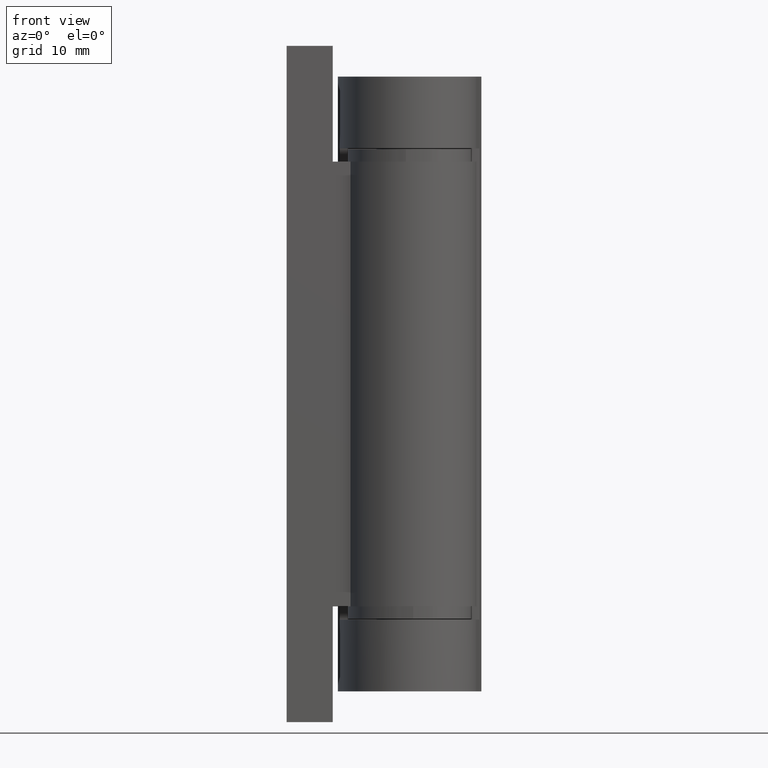
[diagram: clean part render]
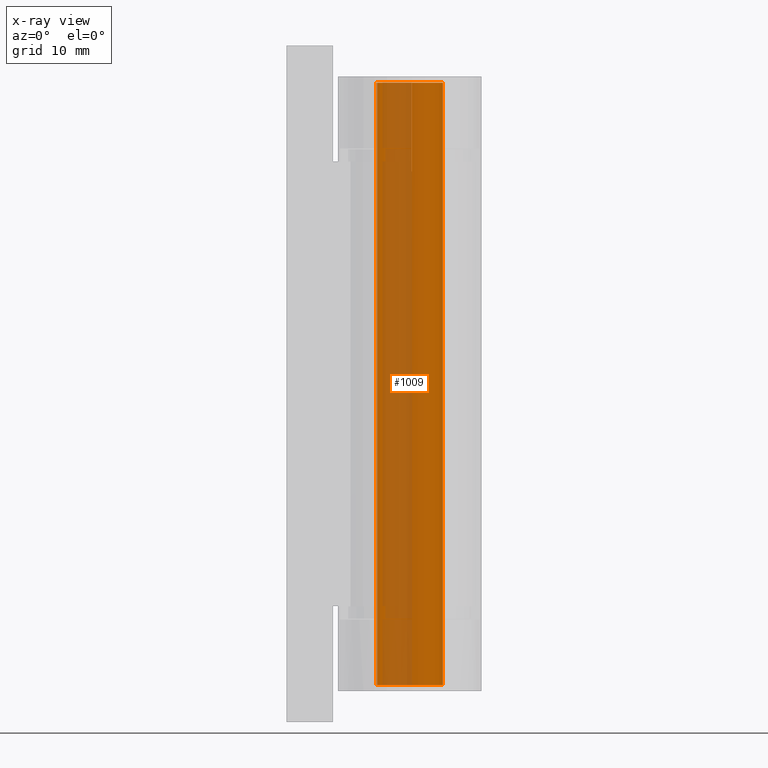
[diagram: x-ray — body ghosted, one internal face saturated and labeled with its STEP entity id]
A machine part, front view, then the same camera in x-ray: the body is ghosted and one INTERNAL B-rep face — a face not visible from any outside direction — is saturated and labeled: STEP entity #1009.
In plain terms, the highlighted face is a freeform B-spline surface patch.
Its self-contained STEP definition (entity closure, byte-faithful):
#843=CARTESIAN_POINT('',(-3.159515617780688,-0.761551745451300,60.870002849848106));
#844=CARTESIAN_POINT('',(-3.226489364959105,-0.483691965790354,60.870002849848099));
#845=CARTESIAN_POINT('',(-3.243938094871067,-0.198407753488292,60.870002849848099));
#846=CARTESIAN_POINT('',(-3.442345848359353,3.045530341382774,60.870002849848099));
#847=CARTESIAN_POINT('',(-0.198407753488285,3.243938094871059,60.870002849848099));
#848=CARTESIAN_POINT('',(3.045530341382781,3.442345848359345,60.870002849848099));
#849=CARTESIAN_POINT('',(3.243938094871067,0.198407753488278,60.870002849848099));
#850=CARTESIAN_POINT('',(3.442345848359353,-3.045530341382788,60.870002849848099));
#851=CARTESIAN_POINT('',(0.198407753488285,-3.243938094871074,60.870002849848099));
#852=CARTESIAN_POINT('',(-3.159515617780688,-0.761551745451300,-0.906747150151730));
#853=CARTESIAN_POINT('',(-3.226489364959105,-0.483691965790354,-0.906747150151730));
#854=CARTESIAN_POINT('',(-3.243938094871067,-0.198407753488292,-0.906747150151730));
#855=CARTESIAN_POINT('',(-3.442345848359353,3.045530341382774,-0.906747150151730));
#856=CARTESIAN_POINT('',(-0.198407753488285,3.243938094871059,-0.906747150151730));
#857=CARTESIAN_POINT('',(3.045530341382781,3.442345848359345,-0.906747150151730));
#858=CARTESIAN_POINT('',(3.243938094871067,0.198407753488278,-0.906747150151730));
#859=CARTESIAN_POINT('',(3.442345848359353,-3.045530341382788,-0.906747150151730));
#860=CARTESIAN_POINT('',(0.198407753488285,-3.243938094871074,-0.906747150151730));
#868=(BOUNDED_SURFACE()B_SPLINE_SURFACE(2,1,((#843,#852),(#844,#853),(#845,#854),(#846,#855),(#847,#856),(#848,#857),(#849,#858),(#850,#859),(#851,#860)),.UNSPECIFIED.,.F.,.F.,.U.)B_SPLINE_SURFACE_WITH_KNOTS((3,2,2,2,3),(2,2),(0.0,0.646173157302028,6.030949468152263,11.415725779002500,16.800502089852731),(0.0,61.776749999999844),.UNSPECIFIED.)GEOMETRIC_REPRESENTATION_ITEM()RATIONAL_B_SPLINE_SURFACE(((0.938140952186599,0.938140952186599),(0.964852813742386,0.964852813742386),(1.0,1.0),(0.707106781186548,0.707106781186548),(1.0,1.0),(0.707106781186548,0.707106781186548),(1.0,1.0),(0.707106781186548,0.707106781186548),(1.0,1.0)))REPRESENTATION_ITEM('')SURFACE());
#869=CARTESIAN_POINT('',(-3.159515107589275,-0.761553862120335,0.600002849848263));
#870=VERTEX_POINT('',#869);
#871=CARTESIAN_POINT('',(-3.250000000000000,-7.105427E-015,0.600002849848266));
#872=VERTEX_POINT('',#871);
#873=CARTESIAN_POINT('',(-3.159515107589275,-0.761553862120335,0.600002849848263));
#874=CARTESIAN_POINT('',(-3.250000000000000,-0.386152464007890,0.600002849848266));
#875=CARTESIAN_POINT('',(-3.250000000000000,-7.105427E-015,0.600002849848266));
#883=(BOUNDED_CURVE()B_SPLINE_CURVE(2,(#873,#874,#875),.UNSPECIFIED.,.F.,.U.)B_SPLINE_CURVE_WITH_KNOTS((3,3),(0.959962600788305,1.0),.UNSPECIFIED.)CURVE()GEOMETRIC_REPRESENTATION_ITEM()RATIONAL_B_SPLINE_CURVE((0.921210726265696,0.953093269087870,1.0))REPRESENTATION_ITEM(''));
#884=EDGE_CURVE('',#870,#872,#883,.T.);
#885=ORIENTED_EDGE('',*,*,#884,.F.);
#886=CARTESIAN_POINT('',(-3.159515107589275,-0.761553862120336,59.400002849848093));
#887=VERTEX_POINT('',#886);
#888=CARTESIAN_POINT('',(-3.159515107589275,-0.761553862120336,59.400002849848093));
#889=CARTESIAN_POINT('',(-3.159515107589275,-0.761553862120335,0.600002849848263));
#890=QUASI_UNIFORM_CURVE('',1,(#888,#889),.UNSPECIFIED.,.F.,.U.);
#891=EDGE_CURVE('',#887,#870,#890,.T.);
#892=ORIENTED_EDGE('',*,*,#891,.F.);
#893=CARTESIAN_POINT('',(-3.250000000000000,-7.105427E-015,59.400002849848093));
#894=VERTEX_POINT('',#893);
#895=CARTESIAN_POINT('',(-3.159515107589275,-0.761553862120336,59.400002849848093));
#896=CARTESIAN_POINT('',(-3.250000000000000,-0.386152464007890,59.400002849848093));
#897=CARTESIAN_POINT('',(-3.250000000000000,-7.105427E-015,59.400002849848093));
#905=(BOUNDED_CURVE()B_SPLINE_CURVE(2,(#895,#896,#897),.UNSPECIFIED.,.F.,.U.)B_SPLINE_CURVE_WITH_KNOTS((3,3),(0.959962600788305,1.0),.UNSPECIFIED.)CURVE()GEOMETRIC_REPRESENTATION_ITEM()RATIONAL_B_SPLINE_CURVE((0.921210726265696,0.953093269087870,1.0))REPRESENTATION_ITEM(''));
#906=EDGE_CURVE('',#887,#894,#905,.T.);
#907=ORIENTED_EDGE('',*,*,#906,.T.);
#908=CARTESIAN_POINT('',(-0.383611262964108,3.227280960684925,59.400002849806192));
#909=VERTEX_POINT('',#908);
#910=CARTESIAN_POINT('',(-3.250000000000000,-7.105427E-015,59.400002849848093));
#911=CARTESIAN_POINT('',(-3.250000000000000,2.886567208757016,59.400002849848093));
#912=CARTESIAN_POINT('',(-0.383611262964108,3.227280960684925,59.400002849806185));
#920=(BOUNDED_CURVE()B_SPLINE_CURVE(2,(#910,#911,#912),.UNSPECIFIED.,.F.,.U.)B_SPLINE_CURVE_WITH_KNOTS((3,3),(0.0,0.229562473481638),.UNSPECIFIED.)CURVE()GEOMETRIC_REPRESENTATION_ITEM()RATIONAL_B_SPLINE_CURVE((1.0,0.731050832892741,0.956026754121231))REPRESENTATION_ITEM(''));
#921=EDGE_CURVE('',#894,#909,#920,.T.);
#922=ORIENTED_EDGE('',*,*,#921,.T.);
#923=CARTESIAN_POINT('',(3.250000000000000,-7.105427E-015,59.400002849848093));
#924=VERTEX_POINT('',#923);
#925=CARTESIAN_POINT('',(-0.383611262964108,3.227280960684925,59.400002849806192));
#926=CARTESIAN_POINT('',(-0.192478389196838,3.249999999999993,59.400002849848086));
#927=CARTESIAN_POINT('',(0.0,3.249999999999993,59.400002849848093));
#928=CARTESIAN_POINT('',(3.250000000000000,3.249999999999993,59.400002849848093));
#929=CARTESIAN_POINT('',(3.250000000000000,-7.105427E-015,59.400002849848093));
#937=(BOUNDED_CURVE()B_SPLINE_CURVE(2,(#925,#926,#927,#928,#929),.UNSPECIFIED.,.F.,.U.)B_SPLINE_CURVE_WITH_KNOTS((3,2,3),(0.229562473481637,0.250000000000000,0.500000000000000),.UNSPECIFIED.)CURVE()GEOMETRIC_REPRESENTATION_ITEM()RATIONAL_B_SPLINE_CURVE((0.956026754121231,0.976055948293806,1.0,0.707106781186547,1.0))REPRESENTATION_ITEM(''));
#938=EDGE_CURVE('',#909,#924,#937,.T.);
#939=ORIENTED_EDGE('',*,*,#938,.T.);
#940=CARTESIAN_POINT('',(0.198407753974655,-3.243938094905489,59.400002849784052));
#941=VERTEX_POINT('',#940);
#942=CARTESIAN_POINT('',(3.250000000000000,-7.105427E-015,59.400002849848093));
#943=CARTESIAN_POINT('',(3.250000000000000,-3.057294716228707,59.400002849848100));
#944=CARTESIAN_POINT('',(0.198407753974656,-3.243938094905489,59.400002849784059));
#952=(BOUNDED_CURVE()B_SPLINE_CURVE(2,(#942,#943,#944),.UNSPECIFIED.,.F.,.U.)B_SPLINE_CURVE_WITH_KNOTS((3,3),(0.500000000000000,0.739332962173535),.UNSPECIFIED.)CURVE()GEOMETRIC_REPRESENTATION_ITEM()RATIONAL_B_SPLINE_CURVE((1.0,0.719603993363340,0.976072041526536))REPRESENTATION_ITEM(''));
#953=EDGE_CURVE('',#924,#941,#952,.T.);
#954=ORIENTED_EDGE('',*,*,#953,.T.);
#955=CARTESIAN_POINT('',(0.226699907622086,-3.241959714768459,0.600002849889924));
#956=VERTEX_POINT('',#955);
#957=CARTESIAN_POINT('',(0.198407753974655,-3.243938094905489,59.400002849784052));
#958=CARTESIAN_POINT('',(0.226699907622086,-3.241959714768459,0.600002849889924));
#959=QUASI_UNIFORM_CURVE('',1,(#957,#958),.UNSPECIFIED.,.F.,.U.);
#960=EDGE_CURVE('',#941,#956,#959,.T.);
#961=ORIENTED_EDGE('',*,*,#960,.T.);
#962=CARTESIAN_POINT('',(3.250000000000000,-7.105427E-015,0.600002849848266));
#963=VERTEX_POINT('',#962);
#964=CARTESIAN_POINT('',(3.250000000000000,-7.105427E-015,0.600002849848266));
#965=CARTESIAN_POINT('',(3.249995683818056,-3.030612305372936,0.600002849869095));
#966=CARTESIAN_POINT('',(0.226699907622086,-3.241959714768459,0.600002849889924));
#974=(BOUNDED_CURVE()B_SPLINE_CURVE(2,(#964,#965,#966),.UNSPECIFIED.,.F.,.U.)B_SPLINE_CURVE_WITH_KNOTS((3,3),(0.500000000000000,0.737829682980121),.UNSPECIFIED.)CURVE()GEOMETRIC_REPRESENTATION_ITEM()RATIONAL_B_SPLINE_CURVE((1.0,0.721365194490278,0.972871408673394))REPRESENTATION_ITEM(''));
#975=EDGE_CURVE('',#963,#956,#974,.T.);
#976=ORIENTED_EDGE('',*,*,#975,.F.);
#977=CARTESIAN_POINT('',(-0.254992061755888,3.239981334665831,0.600002849931589));
#978=VERTEX_POINT('',#977);
#979=CARTESIAN_POINT('',(-0.254992061755888,3.239981334665832,0.600002849931589));
#980=CARTESIAN_POINT('',(-0.127692848411722,3.249999999999993,0.600002849848266));
#981=CARTESIAN_POINT('',(0.0,3.249999999999993,0.600002849848266));
#982=CARTESIAN_POINT('',(3.250000000000000,3.249999999999993,0.600002849848266));
#983=CARTESIAN_POINT('',(3.250000000000000,-7.105427E-015,0.600002849848266));
#991=(BOUNDED_CURVE()B_SPLINE_CURVE(2,(#979,#980,#981,#982,#983),.UNSPECIFIED.,.F.,.U.)B_SPLINE_CURVE_WITH_KNOTS((3,2,3),(0.236331300565694,0.250000000000000,0.500000000000000),.UNSPECIFIED.)CURVE()GEOMETRIC_REPRESENTATION_ITEM()RATIONAL_B_SPLINE_CURVE((0.969723356031839,0.983986122502770,1.0,0.707106781186547,1.0))REPRESENTATION_ITEM(''));
#992=EDGE_CURVE('',#978,#963,#991,.T.);
#993=ORIENTED_EDGE('',*,*,#992,.F.);
#994=CARTESIAN_POINT('',(-3.250000000000000,-7.105427E-015,0.600002849848266));
#995=CARTESIAN_POINT('',(-3.250000000000001,3.004269096710050,0.600002849848266));
#996=CARTESIAN_POINT('',(-0.254992061755888,3.239981334665832,0.600002849931589));
#1004=(BOUNDED_CURVE()B_SPLINE_CURVE(2,(#994,#995,#996),.UNSPECIFIED.,.F.,.U.)B_SPLINE_CURVE_WITH_KNOTS((3,3),(0.0,0.236331300565694),.UNSPECIFIED.)CURVE()GEOMETRIC_REPRESENTATION_ITEM()RATIONAL_B_SPLINE_CURVE((1.0,0.723120658683778,0.969723356031839))REPRESENTATION_ITEM(''));
#1005=EDGE_CURVE('',#872,#978,#1004,.T.);
#1006=ORIENTED_EDGE('',*,*,#1005,.F.);
#1007=EDGE_LOOP('',(#885,#892,#907,#922,#939,#954,#961,#976,#993,#1006));
#1008=FACE_OUTER_BOUND('',#1007,.T.);
#1009=ADVANCED_FACE('',(#1008),#868,.T.);